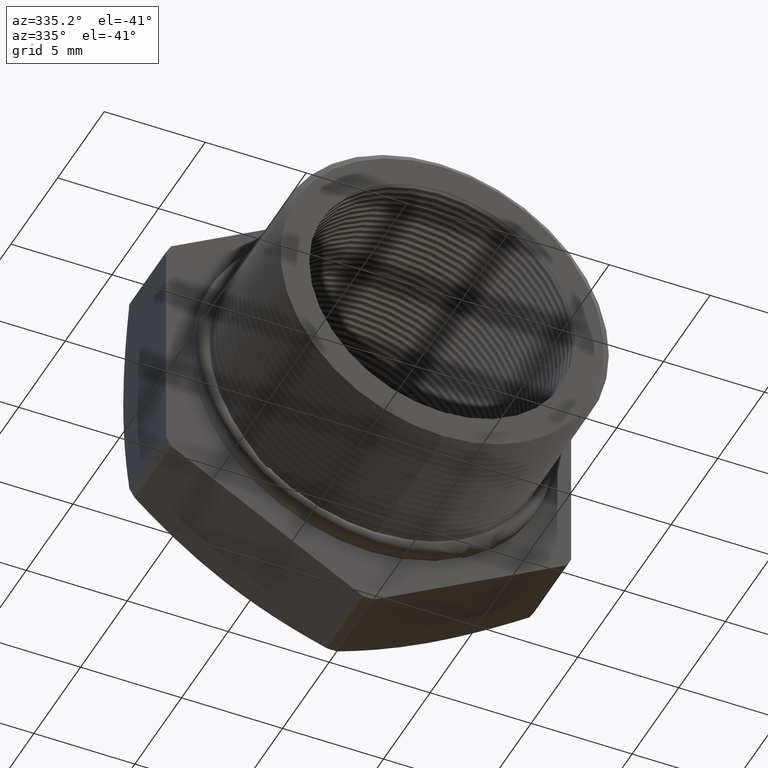
[diagram: clean part render]
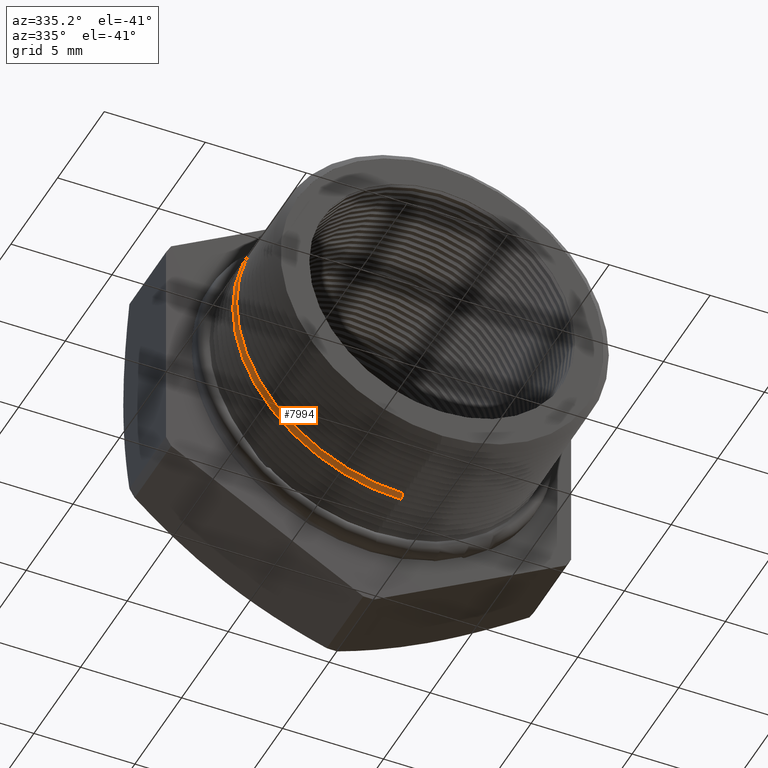
[diagram: same view with one face highlighted and labeled with its STEP entity id]
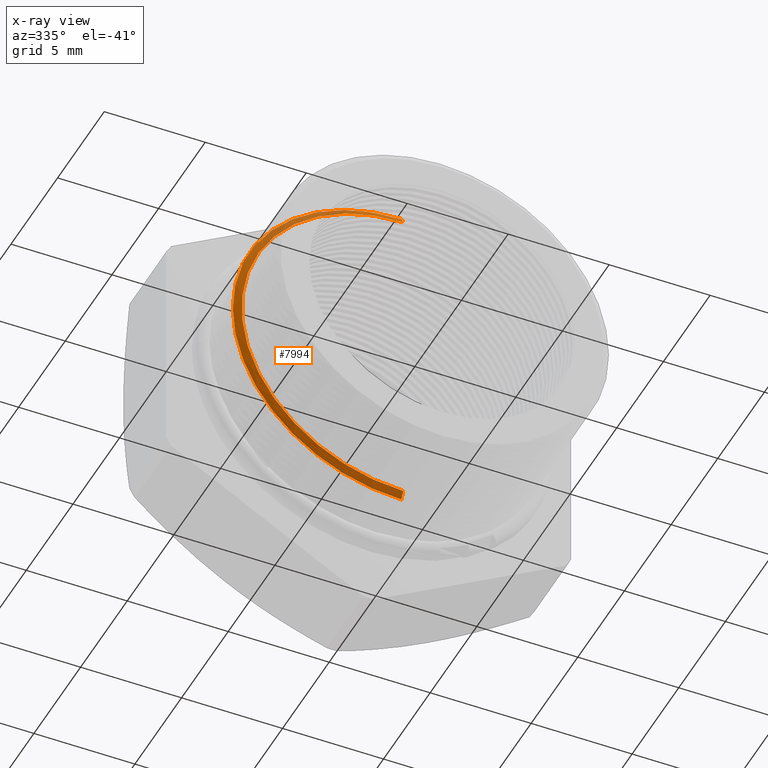
[diagram: x-ray of the same camera — body ghosted, the highlighted face saturated]
A machine part, auxiliary view. The second image highlights one B-rep face of the part: STEP entity #7994.
The next image is the same camera in x-ray: the body ghosted, the highlighted face saturated — about 14% of this face is hidden behind the body in this view.
In plain terms, the highlighted conical surface has half-angle 60 deg.
Its self-contained STEP definition (entity closure, byte-faithful):
#197 = EDGE_CURVE ( 'NONE', #1852, #1799, #2811, .T. ) ;
#1773 = VERTEX_POINT ( 'NONE', #5921 ) ;
#1776 = VERTEX_POINT ( 'NONE', #5911 ) ;
#1778 = EDGE_CURVE ( 'NONE', #1799, #1776, #5910, .T. ) ;
#1799 = VERTEX_POINT ( 'NONE', #5988 ) ;
#1852 = VERTEX_POINT ( 'NONE', #6072 ) ;
#1854 = EDGE_CURVE ( 'NONE', #1852, #1773, #6071, .T. ) ;
#2807 = DIRECTION ( 'NONE',  ( 0.0000000000000000000, 0.0000000000000000000, 1.000000000000000000 ) ) ;
#2808 = DIRECTION ( 'NONE',  ( -0.0000000000000000000, 1.000000000000000000, -0.0000000000000000000 ) ) ;
#2809 = CARTESIAN_POINT ( 'NONE',  ( 0.0000000000000000000, 0.08120253635588706200, 0.0000000000000000000 ) ) ;
#2810 = AXIS2_PLACEMENT_3D ( 'NONE', #2809, #2808, #2807 ) ;
#2811 = CIRCLE ( 'NONE', #2810, 0.3150000000000000000 ) ;
#5907 = DIRECTION ( 'NONE',  ( 0.0000000000000000000, 0.5000000000000008900, 0.8660254037844380400 ) ) ;
#5908 = VECTOR ( 'NONE', #5907, 39.37007874015748100 ) ;
#5909 = CARTESIAN_POINT ( 'NONE',  ( 0.0000000000000000000, 0.08915489058294799600, 0.3287738815610546400 ) ) ;
#5910 = LINE ( 'NONE', #5909, #5908 ) ;
#5911 = CARTESIAN_POINT ( 'NONE',  ( 4.026318816969966200E-017, 0.08915489058294799600, 0.3287738815610546400 ) ) ;
#5921 = CARTESIAN_POINT ( 'NONE',  ( 0.0000000000000000000, 0.08915489058294799600, -0.3287738815610546400 ) ) ;
#5988 = CARTESIAN_POINT ( 'NONE',  ( 3.857637417314162700E-017, 0.08120253635588706200, 0.3150000000000000000 ) ) ;
#6068 = DIRECTION ( 'NONE',  ( 1.060575238724906300E-016, 0.5000000000000008900, -0.8660254037844380400 ) ) ;
#6069 = VECTOR ( 'NONE', #6068, 39.37007874015748100 ) ;
#6070 = CARTESIAN_POINT ( 'NONE',  ( 4.026318816969965600E-017, 0.08915489058294799600, -0.3287738815610546400 ) ) ;
#6071 = LINE ( 'NONE', #6070, #6069 ) ;
#6072 = CARTESIAN_POINT ( 'NONE',  ( 0.0000000000000000000, 0.08120253635588706200, -0.3150000000000000000 ) ) ;
#7510 = DIRECTION ( 'NONE',  ( 0.0000000000000000000, 0.0000000000000000000, 1.000000000000000000 ) ) ;
#7511 = DIRECTION ( 'NONE',  ( -0.0000000000000000000, 1.000000000000000000, -0.0000000000000000000 ) ) ;
#7512 = CARTESIAN_POINT ( 'NONE',  ( 0.0000000000000000000, 0.08915489058294799600, 0.0000000000000000000 ) ) ;
#7513 = AXIS2_PLACEMENT_3D ( 'NONE', #7512, #7511, #7510 ) ;
#7514 = DIRECTION ( 'NONE',  ( 0.0000000000000000000, 0.0000000000000000000, 1.000000000000000000 ) ) ;
#7515 = DIRECTION ( 'NONE',  ( -0.0000000000000000000, 1.000000000000000000, -0.0000000000000000000 ) ) ;
#7516 = CARTESIAN_POINT ( 'NONE',  ( 0.0000000000000000000, 0.08915489058294799600, 0.0000000000000000000 ) ) ;
#7517 = AXIS2_PLACEMENT_3D ( 'NONE', #7516, #7515, #7514 ) ;
#7518 = CIRCLE ( 'NONE', #7513, 0.3287738815610546400 ) ;
#7519 = CONICAL_SURFACE ( 'NONE', #7517, 0.3287738815610546400, 1.047197551196596700 ) ;
#7524 = FACE_OUTER_BOUND ( 'NONE', #7996, .T. ) ;
#7994 = ADVANCED_FACE ( 'NONE', ( #7524 ), #7519, .T. ) ;
#7996 = EDGE_LOOP ( 'NONE', ( #8033, #8024, #8021, #8020 ) ) ;
#8001 = EDGE_CURVE ( 'NONE', #1773, #1776, #7518, .T. ) ;
#8020 = ORIENTED_EDGE ( 'NONE', *, *, #8001, .F. ) ;
#8021 = ORIENTED_EDGE ( 'NONE', *, *, #1778, .T. ) ;
#8024 = ORIENTED_EDGE ( 'NONE', *, *, #197, .T. ) ;
#8033 = ORIENTED_EDGE ( 'NONE', *, *, #1854, .F. ) ;